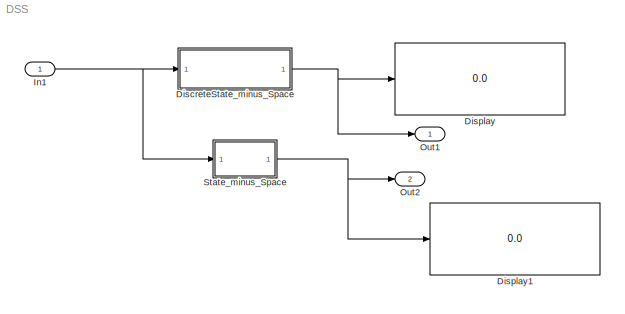
MODEL DSS
KIND model
CONFIG PreLoadFcn = A = [1.303430790495574 0.435903405618026 ;0.581204540824034 1.739334196113600 ];\nB = [0.510647680364470 ;0.500046006035811 ];\nC = [1.000000000000000 5.000000000000000 ];\nD = [2.000000000000000 ];\n
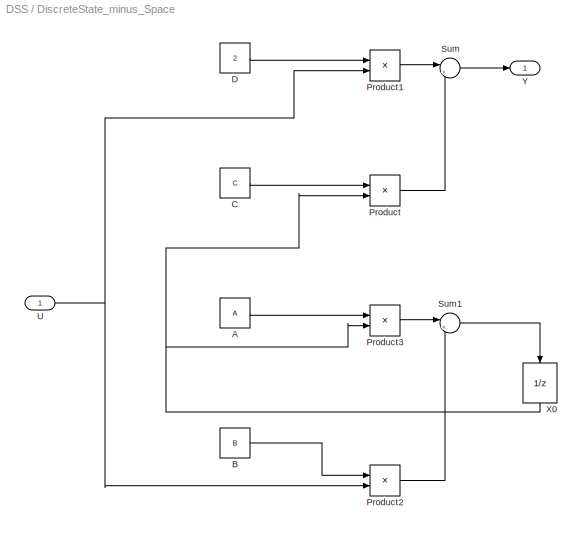
BLOCK [SubSystem] DiscreteState_minus_Space
  Ports = [1, 1]
  RequestExecContextInheritance = off
  SID = 296
  TreatAsAtomicUnit = on
  Variant = off
BLOCK [Constant] DiscreteState_minus_Space/A
  SID = 298
  Value = A
  VectorParams1D = off
BLOCK [Constant] DiscreteState_minus_Space/B
  SID = 299
  Value = B
  VectorParams1D = off
BLOCK [Constant] DiscreteState_minus_Space/C
  SID = 300
  Value = C
  VectorParams1D = off
BLOCK [Constant] DiscreteState_minus_Space/D
  SID = 301
  Value = 2
  VectorParams1D = off
BLOCK [Product] DiscreteState_minus_Space/Product
  InputSameDT = off
  Multiplication = Matrix(*)
  OutDataTypeStr = Inherit: Inherit via internal rule
  Ports = [2, 1]
  RndMeth = Floor
  SID = 302
  SaturateOnIntegerOverflow = off
BLOCK [Product] DiscreteState_minus_Space/Product1
  InputSameDT = off
  Multiplication = Matrix(*)
  OutDataTypeStr = Inherit: Inherit via internal rule
  Ports = [2, 1]
  RndMeth = Floor
  SID = 303
  SaturateOnIntegerOverflow = off
BLOCK [Product] DiscreteState_minus_Space/Product2
  InputSameDT = off
  Multiplication = Matrix(*)
  OutDataTypeStr = Inherit: Inherit via internal rule
  Ports = [2, 1]
  RndMeth = Floor
  SID = 304
  SaturateOnIntegerOverflow = off
BLOCK [Product] DiscreteState_minus_Space/Product3
  InputSameDT = off
  Multiplication = Matrix(*)
  OutDataTypeStr = Inherit: Inherit via internal rule
  Ports = [2, 1]
  RndMeth = Floor
  SID = 305
  SaturateOnIntegerOverflow = off
BLOCK [Sum] DiscreteState_minus_Space/Sum
  IconShape = round
  InputSameDT = off
  Inputs = |++
  OutDataTypeStr = Inherit: Inherit via internal rule
  Ports = [2, 1]
  SID = 306
  SaturateOnIntegerOverflow = off
BLOCK [Sum] DiscreteState_minus_Space/Sum1
  IconShape = round
  InputSameDT = off
  Inputs = |++
  OutDataTypeStr = Inherit: Inherit via internal rule
  Ports = [2, 1]
  SID = 307
  SaturateOnIntegerOverflow = off
BLOCK [Inport] DiscreteState_minus_Space/U
  IconDisplay = Port number
  OutDataTypeStr = double
  PortDimensions = 1
  SID = 297
BLOCK [UnitDelay] DiscreteState_minus_Space/X0
  InputProcessing = Elements as channels (sample based)
  SID = 308
  SampleTime = -1
BLOCK [Outport] DiscreteState_minus_Space/Y
  IconDisplay = Port number
  SID = 309
BLOCK [Display] Display
  Decimation = 1
  Ports = [1]
  SID = 262
BLOCK [Display] Display1
  Decimation = 1
  Ports = [1]
  SID = 288
BLOCK [Inport] In1
  IconDisplay = Port number
  OutDataTypeStr = double
  PortDimensions = 1
  SID = 324
BLOCK [Outport] Out1
  IconDisplay = Port number
  SID = 325
BLOCK [Outport] Out2
  IconDisplay = Port number
  Port = 2
  SID = 326
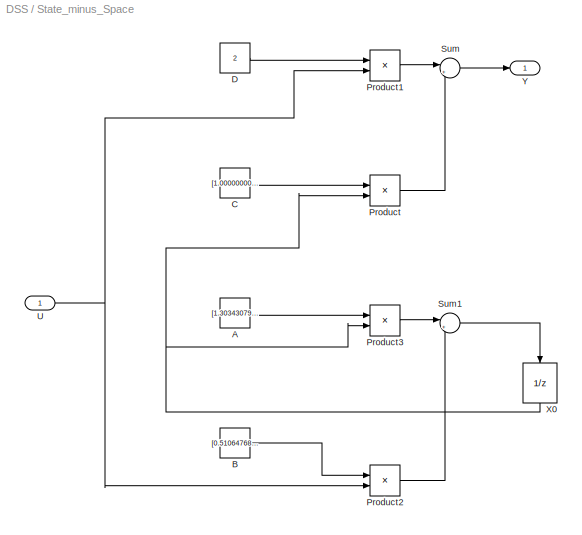
BLOCK [SubSystem] State_minus_Space
  Ports = [1, 1]
  RequestExecContextInheritance = off
  SID = 310
  TreatAsAtomicUnit = on
  Variant = off
BLOCK [Constant] State_minus_Space/A
  SID = 312
  Value = [1.303430790495574 0.435903405618026 ;0.581204540824034 1.739334196113600 ]
  VectorParams1D = off
BLOCK [Constant] State_minus_Space/B
  SID = 313
  Value = [0.510647680364470 ;0.500046006035811 ]
  VectorParams1D = off
BLOCK [Constant] State_minus_Space/C
  SID = 314
  Value = [1.000000000000000 5.000000000000000 ]
  VectorParams1D = off
BLOCK [Constant] State_minus_Space/D
  SID = 315
  Value = 2
  VectorParams1D = off
BLOCK [Product] State_minus_Space/Product
  InputSameDT = off
  Multiplication = Matrix(*)
  OutDataTypeStr = Inherit: Inherit via internal rule
  Ports = [2, 1]
  RndMeth = Floor
  SID = 316
  SaturateOnIntegerOverflow = off
BLOCK [Product] State_minus_Space/Product1
  InputSameDT = off
  Multiplication = Matrix(*)
  OutDataTypeStr = Inherit: Inherit via internal rule
  Ports = [2, 1]
  RndMeth = Floor
  SID = 317
  SaturateOnIntegerOverflow = off
BLOCK [Product] State_minus_Space/Product2
  InputSameDT = off
  Multiplication = Matrix(*)
  OutDataTypeStr = Inherit: Inherit via internal rule
  Ports = [2, 1]
  RndMeth = Floor
  SID = 318
  SaturateOnIntegerOverflow = off
BLOCK [Product] State_minus_Space/Product3
  InputSameDT = off
  Multiplication = Matrix(*)
  OutDataTypeStr = Inherit: Inherit via internal rule
  Ports = [2, 1]
  RndMeth = Floor
  SID = 319
  SaturateOnIntegerOverflow = off
BLOCK [Sum] State_minus_Space/Sum
  IconShape = round
  InputSameDT = off
  Inputs = |++
  OutDataTypeStr = Inherit: Inherit via internal rule
  Ports = [2, 1]
  SID = 320
  SaturateOnIntegerOverflow = off
BLOCK [Sum] State_minus_Space/Sum1
  IconShape = round
  InputSameDT = off
  Inputs = |++
  OutDataTypeStr = Inherit: Inherit via internal rule
  Ports = [2, 1]
  SID = 321
  SaturateOnIntegerOverflow = off
BLOCK [Inport] State_minus_Space/U
  IconDisplay = Port number
  OutDataTypeStr = double
  PortDimensions = 1
  SID = 311
BLOCK [UnitDelay] State_minus_Space/X0
  InitialCondition = [0.000000000000000 ;0.000000000000000 ]
  InputProcessing = Elements as channels (sample based)
  SID = 322
  SampleTime = 0.1
BLOCK [Outport] State_minus_Space/Y
  IconDisplay = Port number
  SID = 323
LINE DiscreteState_minus_Space/A:1 -> DiscreteState_minus_Space/Product3:1
LINE DiscreteState_minus_Space/B:1 -> DiscreteState_minus_Space/Product2:1
LINE DiscreteState_minus_Space/C:1 -> DiscreteState_minus_Space/Product:1
LINE DiscreteState_minus_Space/D:1 -> DiscreteState_minus_Space/Product1:1
LINE DiscreteState_minus_Space/Product1:1 -> DiscreteState_minus_Space/Sum:1
LINE DiscreteState_minus_Space/Product2:1 -> DiscreteState_minus_Space/Sum1:2
LINE DiscreteState_minus_Space/Product3:1 -> DiscreteState_minus_Space/Sum1:1
LINE DiscreteState_minus_Space/Product:1 -> DiscreteState_minus_Space/Sum:2
LINE DiscreteState_minus_Space/Sum1:1 -> DiscreteState_minus_Space/X0:1
LINE DiscreteState_minus_Space/Sum:1 -> DiscreteState_minus_Space/Y:1
NET DiscreteState_minus_Space/U:1 -> DiscreteState_minus_Space/Product1:2, DiscreteState_minus_Space/Product2:2
NET DiscreteState_minus_Space/X0:1 -> DiscreteState_minus_Space/Product3:2, DiscreteState_minus_Space/Product:2
NET DiscreteState_minus_Space:1 -> Display:1, Out1:1
NET In1:1 -> DiscreteState_minus_Space:1, State_minus_Space:1
LINE State_minus_Space/A:1 -> State_minus_Space/Product3:1
LINE State_minus_Space/B:1 -> State_minus_Space/Product2:1
LINE State_minus_Space/C:1 -> State_minus_Space/Product:1
LINE State_minus_Space/D:1 -> State_minus_Space/Product1:1
LINE State_minus_Space/Product1:1 -> State_minus_Space/Sum:1
LINE State_minus_Space/Product2:1 -> State_minus_Space/Sum1:2
LINE State_minus_Space/Product3:1 -> State_minus_Space/Sum1:1
LINE State_minus_Space/Product:1 -> State_minus_Space/Sum:2
LINE State_minus_Space/Sum1:1 -> State_minus_Space/X0:1
LINE State_minus_Space/Sum:1 -> State_minus_Space/Y:1
NET State_minus_Space/U:1 -> State_minus_Space/Product1:2, State_minus_Space/Product2:2
NET State_minus_Space/X0:1 -> State_minus_Space/Product3:2, State_minus_Space/Product:2
NET State_minus_Space:1 -> Display1:1, Out2:1
note: NET lines group one-source signal fan-out (src -> all destinations, sorted); 1:1 wires keep LINE
